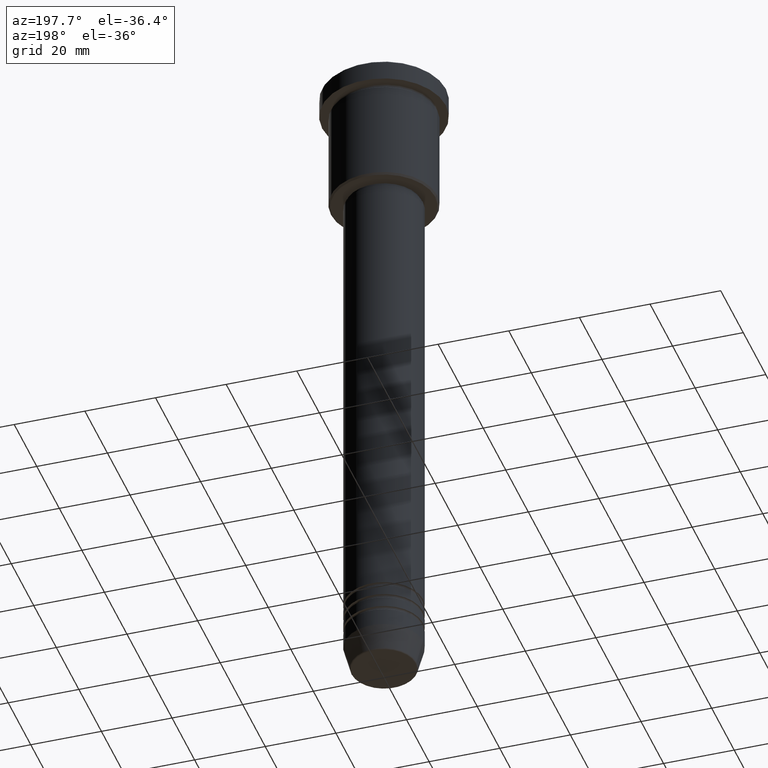
[diagram: clean part render]
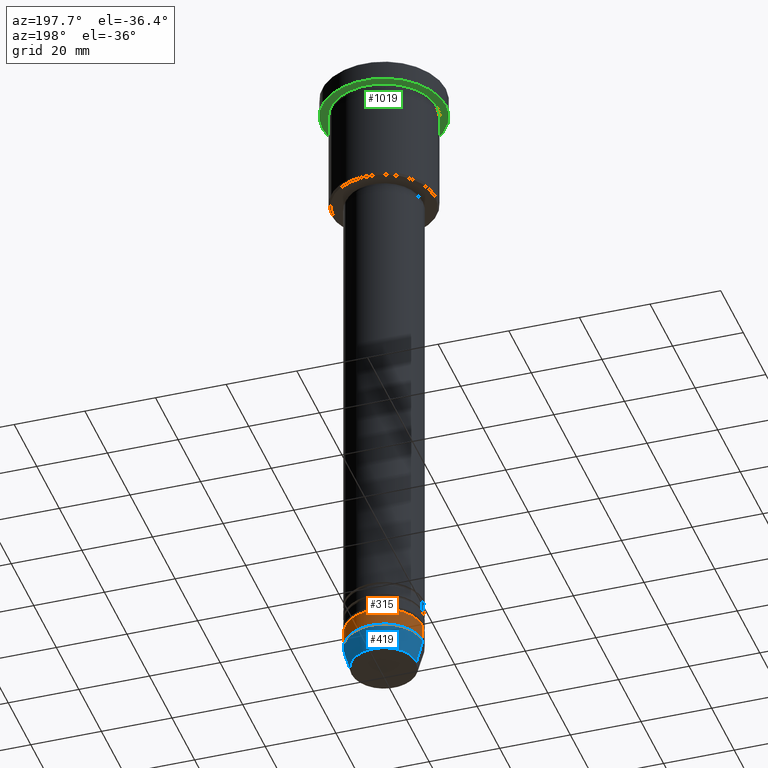
[diagram: same view with three faces highlighted in distinct colors, each labeled with its STEP entity id]
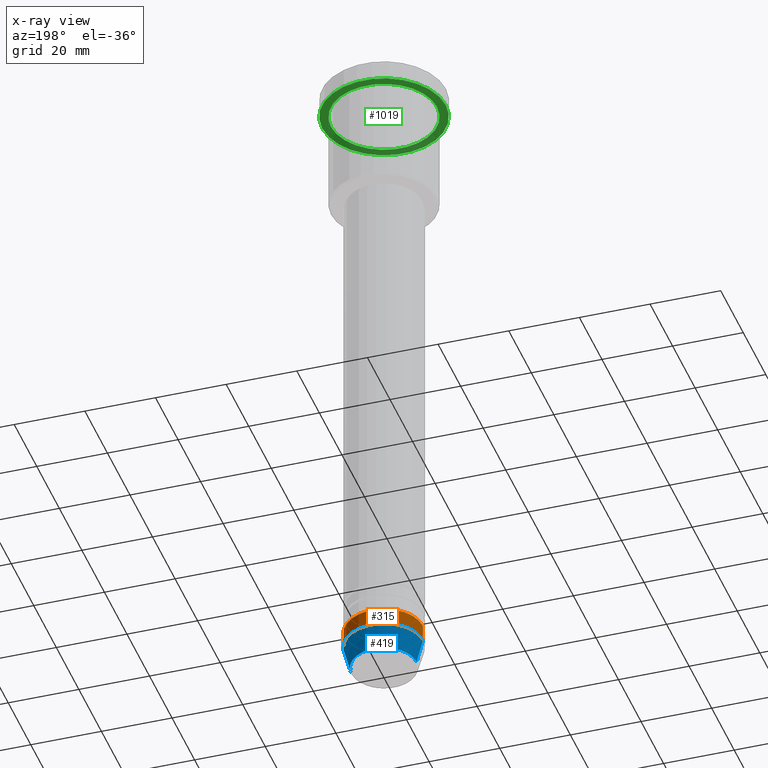
[diagram: x-ray of the same camera — body ghosted, the three highlighted faces saturated]
A machine part, auxiliary view with three faces highlighted in distinct colors.
The next image is the same camera in x-ray (body ghosted, the three faces saturated) — at least one of them is partly hidden behind the body in this view.
Their STEP definitions:

[orange] entity #315 — the highlighted cylindrical surface (partial cylindrical patch) has radius 11 mm, axis along (-0, -0, 1).
#2 = VERTEX_POINT ( 'NONE', #1161 ) ;
#29 = DIRECTION ( 'NONE',  ( -0.000000000000000000, -0.000000000000000000, 1.000000000000000000 ) ) ;
#52 = EDGE_CURVE ( 'NONE', #1053, #1059, #541, .T. ) ;
#96 = AXIS2_PLACEMENT_3D ( 'NONE', #379, #184, #631 ) ;
#139 = EDGE_LOOP ( 'NONE', ( #452, #1097, #293, #830 ) ) ;
#165 = DIRECTION ( 'NONE',  ( -0.000000000000000000, -0.000000000000000000, 1.000000000000000000 ) ) ;
#184 = DIRECTION ( 'NONE',  ( -0.000000000000000000, -0.000000000000000000, 1.000000000000000000 ) ) ;
#293 = ORIENTED_EDGE ( 'NONE', *, *, #530, .F. ) ;
#297 = CYLINDRICAL_SURFACE ( 'NONE', #365, 11.00000000000000000 ) ;
#315 = ADVANCED_FACE ( 'NONE', ( #1118 ), #297, .T. ) ;
#365 = AXIS2_PLACEMENT_3D ( 'NONE', #845, #29, #952 ) ;
#379 = CARTESIAN_POINT ( 'NONE',  ( 0.000000000000000000, 0.000000000000000000, -179.0000000000000284 ) ) ;
#430 = CARTESIAN_POINT ( 'NONE',  ( -11.00000000000000000, 1.347111479062088405E-15, -179.0000000000000284 ) ) ;
#452 = ORIENTED_EDGE ( 'NONE', *, *, #52, .T. ) ;
#455 = EDGE_CURVE ( 'NONE', #1059, #895, #984, .T. ) ;
#505 = VECTOR ( 'NONE', #165, 1000.000000000000000 ) ;
#530 = EDGE_CURVE ( 'NONE', #2, #895, #615, .T. ) ;
#541 = CIRCLE ( 'NONE', #785, 11.00000000000000000 ) ;
#587 = DIRECTION ( 'NONE',  ( -0.000000000000000000, -0.000000000000000000, 1.000000000000000000 ) ) ;
#615 = CIRCLE ( 'NONE', #96, 11.00000000000000000 ) ;
#631 = DIRECTION ( 'NONE',  ( 1.000000000000000000, 0.000000000000000000, 0.000000000000000000 ) ) ;
#697 = DIRECTION ( 'NONE',  ( 1.000000000000000000, 0.000000000000000000, 0.000000000000000000 ) ) ;
#732 = CARTESIAN_POINT ( 'NONE',  ( -11.00000000000000000, 1.347111479062088405E-15, -184.0000000000000000 ) ) ;
#785 = AXIS2_PLACEMENT_3D ( 'NONE', #1039, #587, #697 ) ;
#830 = ORIENTED_EDGE ( 'NONE', *, *, #861, .F. ) ;
#845 = CARTESIAN_POINT ( 'NONE',  ( 0.000000000000000000, 0.000000000000000000, 0.000000000000000000 ) ) ;
#861 = EDGE_CURVE ( 'NONE', #1053, #2, #975, .T. ) ;
#895 = VERTEX_POINT ( 'NONE', #430 ) ;
#952 = DIRECTION ( 'NONE',  ( 1.000000000000000000, 0.000000000000000000, 0.000000000000000000 ) ) ;
#975 = LINE ( 'NONE', #983, #505 ) ;
#983 = CARTESIAN_POINT ( 'NONE',  ( 11.00000000000000000, 0.000000000000000000, 0.000000000000000000 ) ) ;
#984 = LINE ( 'NONE', #1077, #994 ) ;
#994 = VECTOR ( 'NONE', #1166, 1000.000000000000000 ) ;
#1039 = CARTESIAN_POINT ( 'NONE',  ( 0.000000000000000000, 0.000000000000000000, -184.0000000000000000 ) ) ;
#1053 = VERTEX_POINT ( 'NONE', #1081 ) ;
#1059 = VERTEX_POINT ( 'NONE', #732 ) ;
#1077 = CARTESIAN_POINT ( 'NONE',  ( -11.00000000000000000, 1.347111479062088405E-15, 0.000000000000000000 ) ) ;
#1081 = CARTESIAN_POINT ( 'NONE',  ( 11.00000000000000000, 0.000000000000000000, -184.0000000000000000 ) ) ;
#1097 = ORIENTED_EDGE ( 'NONE', *, *, #455, .T. ) ;
#1118 = FACE_OUTER_BOUND ( 'NONE', #139, .T. ) ;
#1161 = CARTESIAN_POINT ( 'NONE',  ( 11.00000000000000000, 0.000000000000000000, -179.0000000000000284 ) ) ;
#1166 = DIRECTION ( 'NONE',  ( -0.000000000000000000, -0.000000000000000000, 1.000000000000000000 ) ) ;

[blue] entity #419 — the highlighted conical surface has half-angle 15 deg.
#5 = VECTOR ( 'NONE', #296, 1000.000000000000000 ) ;
#51 = DIRECTION ( 'NONE',  ( -0.000000000000000000, -0.000000000000000000, 1.000000000000000000 ) ) ;
#52 = EDGE_CURVE ( 'NONE', #1053, #1059, #541, .T. ) ;
#53 = DIRECTION ( 'NONE',  ( -0.000000000000000000, -0.000000000000000000, 1.000000000000000000 ) ) ;
#158 = VERTEX_POINT ( 'NONE', #898 ) ;
#199 = DIRECTION ( 'NONE',  ( -0.2588190451025213501, 3.169619151431772337E-17, 0.9659258262890680902 ) ) ;
#210 = CARTESIAN_POINT ( 'NONE',  ( 9.223655072137189492, 0.000000000000000000, -190.6294095225512422 ) ) ;
#211 = AXIS2_PLACEMENT_3D ( 'NONE', #718, #53, #616 ) ;
#239 = CARTESIAN_POINT ( 'NONE',  ( 0.000000000000000000, 0.000000000000000000, -190.6294095225512422 ) ) ;
#268 = VECTOR ( 'NONE', #199, 1000.000000000000000 ) ;
#296 = DIRECTION ( 'NONE',  ( 0.2588190451025213501, 0.000000000000000000, 0.9659258262890680902 ) ) ;
#341 = FACE_OUTER_BOUND ( 'NONE', #756, .T. ) ;
#351 = AXIS2_PLACEMENT_3D ( 'NONE', #239, #51, #781 ) ;
#419 = ADVANCED_FACE ( 'NONE', ( #341 ), #577, .T. ) ;
#541 = CIRCLE ( 'NONE', #785, 11.00000000000000000 ) ;
#555 = LINE ( 'NONE', #1017, #268 ) ;
#577 = CONICAL_SURFACE ( 'NONE', #211, 11.00000000000000000, 0.2617993877991500740 ) ;
#587 = DIRECTION ( 'NONE',  ( -0.000000000000000000, -0.000000000000000000, 1.000000000000000000 ) ) ;
#608 = EDGE_CURVE ( 'NONE', #158, #1059, #555, .T. ) ;
#616 = DIRECTION ( 'NONE',  ( 1.000000000000000000, 0.000000000000000000, 0.000000000000000000 ) ) ;
#654 = ORIENTED_EDGE ( 'NONE', *, *, #52, .F. ) ;
#678 = ORIENTED_EDGE ( 'NONE', *, *, #719, .F. ) ;
#697 = DIRECTION ( 'NONE',  ( 1.000000000000000000, 0.000000000000000000, 0.000000000000000000 ) ) ;
#718 = CARTESIAN_POINT ( 'NONE',  ( 0.000000000000000000, 0.000000000000000000, -184.0000000000000000 ) ) ;
#719 = EDGE_CURVE ( 'NONE', #724, #1053, #849, .T. ) ;
#724 = VERTEX_POINT ( 'NONE', #210 ) ;
#732 = CARTESIAN_POINT ( 'NONE',  ( -11.00000000000000000, 1.347111479062088405E-15, -184.0000000000000000 ) ) ;
#756 = EDGE_LOOP ( 'NONE', ( #987, #966, #654, #678 ) ) ;
#758 = CARTESIAN_POINT ( 'NONE',  ( 11.00000000000000000, 0.000000000000000000, -184.0000000000000000 ) ) ;
#781 = DIRECTION ( 'NONE',  ( 1.000000000000000000, 0.000000000000000000, 0.000000000000000000 ) ) ;
#785 = AXIS2_PLACEMENT_3D ( 'NONE', #1039, #587, #697 ) ;
#849 = LINE ( 'NONE', #758, #5 ) ;
#898 = CARTESIAN_POINT ( 'NONE',  ( -9.223655072137189492, 1.238341722557647202E-15, -190.6294095225512422 ) ) ;
#912 = EDGE_CURVE ( 'NONE', #724, #158, #1153, .T. ) ;
#966 = ORIENTED_EDGE ( 'NONE', *, *, #608, .T. ) ;
#987 = ORIENTED_EDGE ( 'NONE', *, *, #912, .T. ) ;
#1017 = CARTESIAN_POINT ( 'NONE',  ( -11.00000000000000000, 1.347111479062088405E-15, -184.0000000000000000 ) ) ;
#1039 = CARTESIAN_POINT ( 'NONE',  ( 0.000000000000000000, 0.000000000000000000, -184.0000000000000000 ) ) ;
#1053 = VERTEX_POINT ( 'NONE', #1081 ) ;
#1059 = VERTEX_POINT ( 'NONE', #732 ) ;
#1081 = CARTESIAN_POINT ( 'NONE',  ( 11.00000000000000000, 0.000000000000000000, -184.0000000000000000 ) ) ;
#1153 = CIRCLE ( 'NONE', #351, 9.223655072137189492 ) ;

[green] entity #1019 — the highlighted planar face has unit normal (0, 0, -1).
#10 = FACE_BOUND ( 'NONE', #434, .T. ) ;
#22 = CARTESIAN_POINT ( 'NONE',  ( 15.00000000000000000, 1.836970198721029589E-15, -5.999999999999994671 ) ) ;
#42 = CIRCLE ( 'NONE', #937, 17.50000000000000000 ) ;
#90 = DIRECTION ( 'NONE',  ( 1.000000000000000000, 0.000000000000000000, 0.000000000000000000 ) ) ;
#91 = DIRECTION ( 'NONE',  ( -0.000000000000000000, -0.000000000000000000, 1.000000000000000000 ) ) ;
#95 = CARTESIAN_POINT ( 'NONE',  ( -17.50000000000000000, 2.143131898507868248E-15, -5.999999999999995559 ) ) ;
#121 = VERTEX_POINT ( 'NONE', #22 ) ;
#143 = CARTESIAN_POINT ( 'NONE',  ( 0.000000000000000000, 0.000000000000000000, -5.999999999999995559 ) ) ;
#216 = VERTEX_POINT ( 'NONE', #1010 ) ;
#248 = ORIENTED_EDGE ( 'NONE', *, *, #908, .T. ) ;
#255 = ORIENTED_EDGE ( 'NONE', *, *, #664, .T. ) ;
#264 = PLANE ( 'NONE',  #1032 ) ;
#295 = VERTEX_POINT ( 'NONE', #390 ) ;
#390 = CARTESIAN_POINT ( 'NONE',  ( 17.50000000000000000, 0.000000000000000000, -5.999999999999995559 ) ) ;
#434 = EDGE_LOOP ( 'NONE', ( #248, #255 ) ) ;
#458 = DIRECTION ( 'NONE',  ( -1.000000000000000000, 0.000000000000000000, 0.000000000000000000 ) ) ;
#464 = CIRCLE ( 'NONE', #1132, 17.50000000000000000 ) ;
#500 = ORIENTED_EDGE ( 'NONE', *, *, #1050, .F. ) ;
#528 = DIRECTION ( 'NONE',  ( -0.000000000000000000, -0.000000000000000000, 1.000000000000000000 ) ) ;
#543 = AXIS2_PLACEMENT_3D ( 'NONE', #911, #91, #458 ) ;
#595 = DIRECTION ( 'NONE',  ( -1.000000000000000000, 0.000000000000000000, 0.000000000000000000 ) ) ;
#626 = FACE_OUTER_BOUND ( 'NONE', #909, .T. ) ;
#635 = AXIS2_PLACEMENT_3D ( 'NONE', #143, #700, #595 ) ;
#640 = CARTESIAN_POINT ( 'NONE',  ( 0.000000000000000000, 17.50000000000000000, -5.999999999999995559 ) ) ;
#664 = EDGE_CURVE ( 'NONE', #121, #216, #1011, .T. ) ;
#700 = DIRECTION ( 'NONE',  ( -0.000000000000000000, -0.000000000000000000, 1.000000000000000000 ) ) ;
#709 = CARTESIAN_POINT ( 'NONE',  ( 0.000000000000000000, 0.000000000000000000, -5.999999999999995559 ) ) ;
#717 = DIRECTION ( 'NONE',  ( 1.000000000000000000, 0.000000000000000000, 0.000000000000000000 ) ) ;
#725 = DIRECTION ( 'NONE',  ( -0.000000000000000000, -0.000000000000000000, 1.000000000000000000 ) ) ;
#736 = CARTESIAN_POINT ( 'NONE',  ( 0.000000000000000000, 0.000000000000000000, -5.999999999999995559 ) ) ;
#877 = EDGE_CURVE ( 'NONE', #1035, #295, #42, .T. ) ;
#908 = EDGE_CURVE ( 'NONE', #216, #121, #977, .T. ) ;
#909 = EDGE_LOOP ( 'NONE', ( #500, #1127 ) ) ;
#910 = DIRECTION ( 'NONE',  ( -1.000000000000000000, 0.000000000000000000, -0.000000000000000000 ) ) ;
#911 = CARTESIAN_POINT ( 'NONE',  ( 0.000000000000000000, 0.000000000000000000, -5.999999999999995559 ) ) ;
#921 = DIRECTION ( 'NONE',  ( 0.000000000000000000, 0.000000000000000000, -1.000000000000000000 ) ) ;
#937 = AXIS2_PLACEMENT_3D ( 'NONE', #709, #528, #717 ) ;
#977 = CIRCLE ( 'NONE', #635, 15.00000000000000000 ) ;
#1010 = CARTESIAN_POINT ( 'NONE',  ( -15.00000000000000000, 0.000000000000000000, -5.999999999999994671 ) ) ;
#1011 = CIRCLE ( 'NONE', #543, 15.00000000000000000 ) ;
#1019 = ADVANCED_FACE ( 'NONE', ( #10, #626 ), #264, .T. ) ;
#1032 = AXIS2_PLACEMENT_3D ( 'NONE', #640, #921, #910 ) ;
#1035 = VERTEX_POINT ( 'NONE', #95 ) ;
#1050 = EDGE_CURVE ( 'NONE', #295, #1035, #464, .T. ) ;
#1127 = ORIENTED_EDGE ( 'NONE', *, *, #877, .F. ) ;
#1132 = AXIS2_PLACEMENT_3D ( 'NONE', #736, #725, #90 ) ;